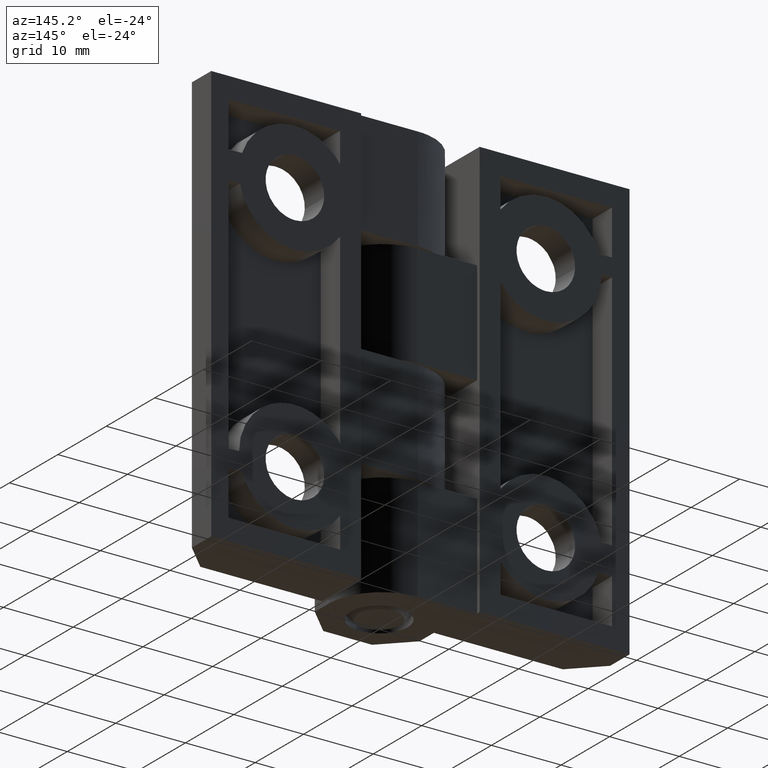
[diagram: clean part render]
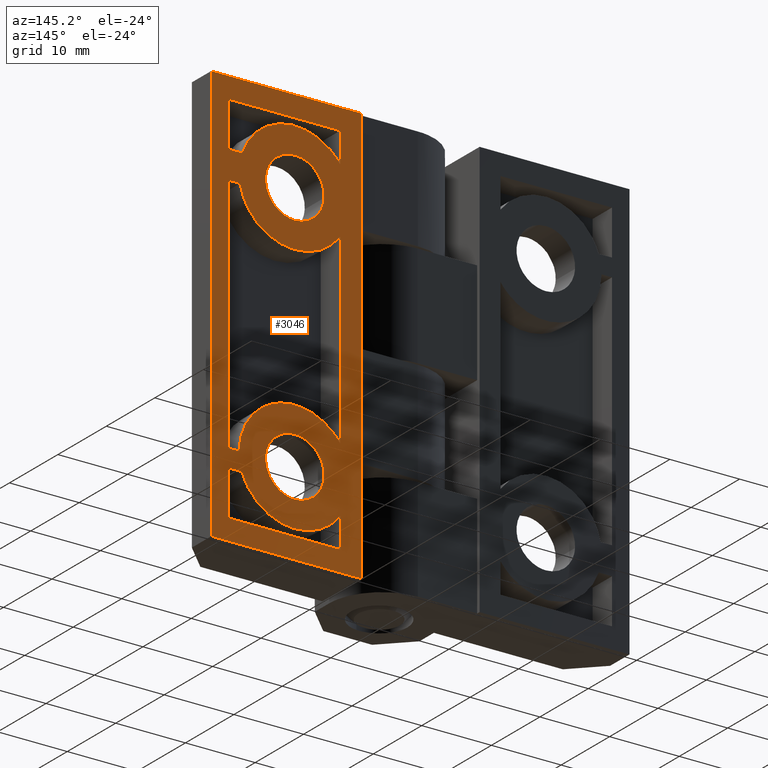
[diagram: same view with one face highlighted and labeled with its STEP entity id]
A machine part, auxiliary view. The second image highlights one B-rep face of the part: STEP entity #3046.
In plain terms, the highlighted face is a freeform B-spline surface patch.
Its self-contained STEP definition (entity closure, byte-faithful):
#636=CARTESIAN_POINT('',(22.170642368832588,8.500000403728343,48.495747181801477));
#637=VERTEX_POINT('',#636);
#643=CARTESIAN_POINT('',(18.000000854954202,8.500000403728341,43.800000655464792));
#644=VERTEX_POINT('',#643);
#645=CARTESIAN_POINT('',(22.170642368832596,8.500000403728343,48.495747181801484));
#646=CARTESIAN_POINT('',(22.200002479367015,8.500000403728341,48.248744613024321));
#647=CARTESIAN_POINT('',(22.200002479367011,8.500000403728341,48.000002279877599));
#648=CARTESIAN_POINT('',(22.200002479367011,8.500000403728341,43.800000655464792));
#649=CARTESIAN_POINT('',(18.000000854954202,8.500000403728341,43.800000655464792));
#657=(BOUNDED_CURVE()B_SPLINE_CURVE(2,(#645,#646,#647,#648,#649),.UNSPECIFIED.,.F.,.U.)B_SPLINE_CURVE_WITH_KNOTS((3,2,3),(0.229562398579775,0.250000000000000,0.500000000000000),.UNSPECIFIED.)CURVE()GEOMETRIC_REPRESENTATION_ITEM()RATIONAL_B_SPLINE_CURVE((0.956026607310568,0.976055860540816,1.0,0.707106781186547,1.0))REPRESENTATION_ITEM(''));
#658=EDGE_CURVE('',#637,#644,#657,.T.);
#660=CARTESIAN_POINT('',(13.807833080212770,8.500000403728341,47.743598314444647));
#661=VERTEX_POINT('',#660);
#662=CARTESIAN_POINT('',(18.000000854954202,8.500000403728341,43.800000655464792));
#663=CARTESIAN_POINT('',(14.049033846267980,8.500000403728341,43.800000655464807));
#664=CARTESIAN_POINT('',(13.807833080212774,8.500000403728341,47.743598314444654));
#672=(BOUNDED_CURVE()B_SPLINE_CURVE(2,(#662,#663,#664),.UNSPECIFIED.,.F.,.U.)B_SPLINE_CURVE_WITH_KNOTS((3,3),(0.500000000000000,0.739332962223979),.UNSPECIFIED.)CURVE()GEOMETRIC_REPRESENTATION_ITEM()RATIONAL_B_SPLINE_CURVE((1.0,0.719603993304241,0.976072041634648))REPRESENTATION_ITEM(''));
#673=EDGE_CURVE('',#644,#661,#672,.T.);
#762=CARTESIAN_POINT('',(18.000000854954202,8.500000403728341,52.200003904290412));
#763=VERTEX_POINT('',#762);
#764=CARTESIAN_POINT('',(13.807833080212776,8.500000403728341,47.743598314444654));
#765=CARTESIAN_POINT('',(13.799999230541388,8.500000403728341,47.871680624174104));
#766=CARTESIAN_POINT('',(13.799999230541390,8.500000403728341,48.000002279877599));
#767=CARTESIAN_POINT('',(13.799999230541388,8.500000403728341,52.200003904290398));
#768=CARTESIAN_POINT('',(18.000000854954202,8.500000403728341,52.200003904290412));
#776=(BOUNDED_CURVE()B_SPLINE_CURVE(2,(#764,#765,#766,#767,#768),.UNSPECIFIED.,.F.,.U.)B_SPLINE_CURVE_WITH_KNOTS((3,2,3),(0.739332962223980,0.750000000000000,1.0),.UNSPECIFIED.)CURVE()GEOMETRIC_REPRESENTATION_ITEM()RATIONAL_B_SPLINE_CURVE((0.976072041634650,0.987502787882308,1.0,0.707106781186547,1.0))REPRESENTATION_ITEM(''));
#777=EDGE_CURVE('',#661,#763,#776,.T.);
#779=CARTESIAN_POINT('',(18.000000854954202,8.500000403728341,52.200003904290412));
#780=CARTESIAN_POINT('',(21.730333641041899,8.500000403728341,52.200003904290391));
#781=CARTESIAN_POINT('',(22.170642368832596,8.500000403728343,48.495747181801484));
#789=(BOUNDED_CURVE()B_SPLINE_CURVE(2,(#779,#780,#781),.UNSPECIFIED.,.F.,.U.)B_SPLINE_CURVE_WITH_KNOTS((3,3),(0.0,0.229562398579775),.UNSPECIFIED.)CURVE()GEOMETRIC_REPRESENTATION_ITEM()RATIONAL_B_SPLINE_CURVE((1.0,0.731050920645732,0.956026607310568))REPRESENTATION_ITEM(''));
#790=EDGE_CURVE('',#763,#637,#789,.T.);
#964=CARTESIAN_POINT('',(22.170642368832588,8.500000403728343,12.495747181801560));
#965=VERTEX_POINT('',#964);
#971=CARTESIAN_POINT('',(18.000000854954202,8.500000403728341,7.800000655464871));
#972=VERTEX_POINT('',#971);
#973=CARTESIAN_POINT('',(22.170642368832596,8.500000403728343,12.495747181801564));
#974=CARTESIAN_POINT('',(22.200002479367011,8.500000403728341,12.248744613024400));
#975=CARTESIAN_POINT('',(22.200002479367011,8.500000403728341,12.000002279877680));
#976=CARTESIAN_POINT('',(22.200002479367011,8.500000403728341,7.800000655464872));
#977=CARTESIAN_POINT('',(18.000000854954202,8.500000403728341,7.800000655464871));
#985=(BOUNDED_CURVE()B_SPLINE_CURVE(2,(#973,#974,#975,#976,#977),.UNSPECIFIED.,.F.,.U.)B_SPLINE_CURVE_WITH_KNOTS((3,2,3),(0.229562398579775,0.250000000000000,0.500000000000000),.UNSPECIFIED.)CURVE()GEOMETRIC_REPRESENTATION_ITEM()RATIONAL_B_SPLINE_CURVE((0.956026607310568,0.976055860540816,1.0,0.707106781186547,1.0))REPRESENTATION_ITEM(''));
#986=EDGE_CURVE('',#965,#972,#985,.T.);
#988=CARTESIAN_POINT('',(13.807833080212770,8.500000403728341,11.743598314444739));
#989=VERTEX_POINT('',#988);
#990=CARTESIAN_POINT('',(18.000000854954202,8.500000403728341,7.800000655464871));
#991=CARTESIAN_POINT('',(14.049033846267934,8.500000403728340,7.800000655464871));
#992=CARTESIAN_POINT('',(13.807833080212768,8.500000403728341,11.743598314444737));
#1000=(BOUNDED_CURVE()B_SPLINE_CURVE(2,(#990,#991,#992),.UNSPECIFIED.,.F.,.U.)B_SPLINE_CURVE_WITH_KNOTS((3,3),(0.500000000000000,0.739332962223981),.UNSPECIFIED.)CURVE()GEOMETRIC_REPRESENTATION_ITEM()RATIONAL_B_SPLINE_CURVE((1.0,0.719603993304239,0.976072041634653))REPRESENTATION_ITEM(''));
#1001=EDGE_CURVE('',#972,#989,#1000,.T.);
#1090=CARTESIAN_POINT('',(18.000000854954202,8.500000403728341,16.200003904290490));
#1091=VERTEX_POINT('',#1090);
#1092=CARTESIAN_POINT('',(13.807833080212770,8.500000403728341,11.743598314444736));
#1093=CARTESIAN_POINT('',(13.799999230541387,8.500000403728341,11.871680624174182));
#1094=CARTESIAN_POINT('',(13.799999230541390,8.500000403728341,12.000002279877680));
#1095=CARTESIAN_POINT('',(13.799999230541388,8.500000403728341,16.200003904290490));
#1096=CARTESIAN_POINT('',(18.000000854954202,8.500000403728341,16.200003904290490));
#1104=(BOUNDED_CURVE()B_SPLINE_CURVE(2,(#1092,#1093,#1094,#1095,#1096),.UNSPECIFIED.,.F.,.U.)B_SPLINE_CURVE_WITH_KNOTS((3,2,3),(0.739332962223980,0.750000000000000,1.0),.UNSPECIFIED.)CURVE()GEOMETRIC_REPRESENTATION_ITEM()RATIONAL_B_SPLINE_CURVE((0.976072041634650,0.987502787882308,1.0,0.707106781186547,1.0))REPRESENTATION_ITEM(''));
#1105=EDGE_CURVE('',#989,#1091,#1104,.T.);
#1107=CARTESIAN_POINT('',(18.000000854954202,8.500000403728341,16.200003904290490));
#1108=CARTESIAN_POINT('',(21.730333641041902,8.500000403728341,16.200003904290487));
#1109=CARTESIAN_POINT('',(22.170642368832592,8.500000403728343,12.495747181801562));
#1117=(BOUNDED_CURVE()B_SPLINE_CURVE(2,(#1107,#1108,#1109),.UNSPECIFIED.,.F.,.U.)B_SPLINE_CURVE_WITH_KNOTS((3,3),(0.0,0.229562398579775),.UNSPECIFIED.)CURVE()GEOMETRIC_REPRESENTATION_ITEM()RATIONAL_B_SPLINE_CURVE((1.0,0.731050920645732,0.956026607310568))REPRESENTATION_ITEM(''));
#1118=EDGE_CURVE('',#1091,#965,#1117,.T.);
#1719=CARTESIAN_POINT('',(11.500001971143099,8.500000403728341,43.336312531821306));
#1720=VERTEX_POINT('',#1719);
#1721=CARTESIAN_POINT('',(25.867130210666300,8.500000403728341,46.548002210911299));
#1722=VERTEX_POINT('',#1721);
#1723=CARTESIAN_POINT('',(11.500001971143121,8.500000403728341,43.336312531821321));
#1724=CARTESIAN_POINT('',(14.583430648978611,8.500000403728341,39.038795235297876));
#1725=CARTESIAN_POINT('',(19.745280805626191,8.500000403728341,40.192697434591118));
#1726=CARTESIAN_POINT('',(24.907130962273779,8.500000403728341,41.346599633884374));
#1727=CARTESIAN_POINT('',(25.867130210666328,8.500000403728341,46.548002210911292));
#1735=(BOUNDED_CURVE()B_SPLINE_CURVE(2,(#1723,#1724,#1725,#1726,#1727),.UNSPECIFIED.,.F.,.U.)B_SPLINE_CURVE_WITH_KNOTS((3,2,3),(0.0,0.500000000000000,1.0),.UNSPECIFIED.)CURVE()GEOMETRIC_REPRESENTATION_ITEM()RATIONAL_B_SPLINE_CURVE((1.0,0.834165630236694,1.0,0.834165630236694,1.0))REPRESENTATION_ITEM(''));
#1736=EDGE_CURVE('',#1720,#1722,#1735,.T.);
#1757=CARTESIAN_POINT('',(11.500001971143140,8.500000403728341,16.663690318025850));
#1758=VERTEX_POINT('',#1757);
#1759=CARTESIAN_POINT('',(11.500001971143140,8.500000403728341,16.663690318025850));
#1760=CARTESIAN_POINT('',(11.500001971143099,8.500000403728341,43.336312531821306));
#1761=QUASI_UNIFORM_CURVE('',1,(#1759,#1760),.UNSPECIFIED.,.F.,.U.);
#1762=EDGE_CURVE('',#1758,#1720,#1761,.T.);
#1792=CARTESIAN_POINT('',(26.000002659857198,8.500000403728341,12.000000569969419));
#1793=VERTEX_POINT('',#1792);
#1794=CARTESIAN_POINT('',(26.000002659857220,8.500000403728341,12.000000569969460));
#1795=CARTESIAN_POINT('',(26.000002659857223,8.500000403728341,17.830542466317507));
#1796=CARTESIAN_POINT('',(20.449492139004501,8.500000403728341,19.615774037563440));
#1797=CARTESIAN_POINT('',(14.898981618151753,8.500000403728341,21.401005608809385));
#1798=CARTESIAN_POINT('',(11.500001971143149,8.500000403728341,16.663690318025839));
#1806=(BOUNDED_CURVE()B_SPLINE_CURVE(2,(#1794,#1795,#1796,#1797,#1798),.UNSPECIFIED.,.F.,.U.)B_SPLINE_CURVE_WITH_KNOTS((3,2,3),(0.0,0.500000000000000,1.0),.UNSPECIFIED.)CURVE()GEOMETRIC_REPRESENTATION_ITEM()RATIONAL_B_SPLINE_CURVE((1.0,0.808141762888108,1.0,0.808141762888108,1.0))REPRESENTATION_ITEM(''));
#1807=EDGE_CURVE('',#1793,#1758,#1806,.T.);
#1824=CARTESIAN_POINT('',(27.500002731103400,8.500000403728341,12.000000569969460));
#1825=VERTEX_POINT('',#1824);
#1826=CARTESIAN_POINT('',(27.500002731103400,8.500000403728341,12.000000569969460));
#1827=CARTESIAN_POINT('',(26.000002659857198,8.500000403728341,12.000000569969419));
#1828=QUASI_UNIFORM_CURVE('',1,(#1826,#1827),.UNSPECIFIED.,.F.,.U.);
#1829=EDGE_CURVE('',#1825,#1793,#1828,.T.);
#1846=CARTESIAN_POINT('',(27.500002731103400,8.500000403728341,46.548002210911399));
#1847=VERTEX_POINT('',#1846);
#1848=CARTESIAN_POINT('',(27.500002731103400,8.500000403728341,46.548002210911399));
#1849=CARTESIAN_POINT('',(27.500002731103400,8.500000403728341,12.000000569969460));
#1850=QUASI_UNIFORM_CURVE('',1,(#1848,#1849),.UNSPECIFIED.,.F.,.U.);
#1851=EDGE_CURVE('',#1847,#1825,#1850,.T.);
#1868=CARTESIAN_POINT('',(25.867130210666300,8.500000403728341,46.548002210911299));
#1869=CARTESIAN_POINT('',(27.500002731103400,8.500000403728341,46.548002210911399));
#1870=QUASI_UNIFORM_CURVE('',1,(#1868,#1869),.UNSPECIFIED.,.F.,.U.);
#1871=EDGE_CURVE('',#1722,#1847,#1870,.T.);
#1937=CARTESIAN_POINT('',(25.583385526354050,8.500000403728341,50.548002400901197));
#1938=VERTEX_POINT('',#1937);
#1939=CARTESIAN_POINT('',(27.500002731103400,8.500000403728341,50.548002400901197));
#1940=VERTEX_POINT('',#1939);
#1941=CARTESIAN_POINT('',(25.583385526354050,8.500000403728341,50.548002400901197));
#1942=CARTESIAN_POINT('',(27.500002731103400,8.500000403728341,50.548002400901197));
#1943=QUASI_UNIFORM_CURVE('',1,(#1941,#1942),.UNSPECIFIED.,.F.,.U.);
#1944=EDGE_CURVE('',#1938,#1940,#1943,.T.);
#1974=CARTESIAN_POINT('',(11.500001971144000,8.500000403728341,52.663692027935298));
#1975=VERTEX_POINT('',#1974);
#1976=CARTESIAN_POINT('',(25.583385526354039,8.500000403728341,50.548002400901197));
#1977=CARTESIAN_POINT('',(24.025504423142028,8.500000403728341,55.184583600651884));
#1978=CARTESIAN_POINT('',(19.188474112498429,8.500000403728341,55.911231058186473));
#1979=CARTESIAN_POINT('',(14.351443801854819,8.500000403728341,56.637878515721070));
#1980=CARTESIAN_POINT('',(11.500001971144000,8.500000403728341,52.663692027935298));
#1988=(BOUNDED_CURVE()B_SPLINE_CURVE(2,(#1976,#1977,#1978,#1979,#1980),.UNSPECIFIED.,.F.,.U.)B_SPLINE_CURVE_WITH_KNOTS((3,2,3),(0.0,0.500000000000000,1.0),.UNSPECIFIED.)CURVE()GEOMETRIC_REPRESENTATION_ITEM()RATIONAL_B_SPLINE_CURVE((1.0,0.853167107467892,1.0,0.853167107467892,1.0))REPRESENTATION_ITEM(''));
#1989=EDGE_CURVE('',#1938,#1975,#1988,.T.);
#2006=CARTESIAN_POINT('',(11.500001971144160,8.500000403728341,57.000002707354703));
#2007=VERTEX_POINT('',#2006);
#2008=CARTESIAN_POINT('',(11.500001971144160,8.500000403728341,57.000002707354703));
#2009=CARTESIAN_POINT('',(11.500001971144000,8.500000403728341,52.663692027935298));
#2010=QUASI_UNIFORM_CURVE('',1,(#2008,#2009),.UNSPECIFIED.,.F.,.U.);
#2011=EDGE_CURVE('',#2007,#1975,#2010,.T.);
#2028=CARTESIAN_POINT('',(27.500002731103400,8.500000403728341,57.000002707354703));
#2029=VERTEX_POINT('',#2028);
#2030=CARTESIAN_POINT('',(27.500002731103400,8.500000403728341,57.000002707354703));
#2031=CARTESIAN_POINT('',(11.500001971144160,8.500000403728341,57.000002707354703));
#2032=QUASI_UNIFORM_CURVE('',1,(#2030,#2031),.UNSPECIFIED.,.F.,.U.);
#2033=EDGE_CURVE('',#2029,#2007,#2032,.T.);
#2050=CARTESIAN_POINT('',(27.500002731103400,8.500000403728341,50.548002400901197));
#2051=CARTESIAN_POINT('',(27.500002731103400,8.500000403728341,57.000002707354703));
#2052=QUASI_UNIFORM_CURVE('',1,(#2050,#2051),.UNSPECIFIED.,.F.,.U.);
#2053=EDGE_CURVE('',#1940,#2029,#2052,.T.);
#2128=CARTESIAN_POINT('',(11.500001971143099,8.500000403728341,7.336310821913150));
#2129=VERTEX_POINT('',#2128);
#2130=CARTESIAN_POINT('',(25.583385526353950,8.500000403728341,9.452000448946000));
#2131=VERTEX_POINT('',#2130);
#2132=CARTESIAN_POINT('',(11.500001971143121,8.500000403728341,7.336310821913161));
#2133=CARTESIAN_POINT('',(14.351443801853403,8.500000403728341,3.362124334126348));
#2134=CARTESIAN_POINT('',(19.188474112497602,8.500000403728341,4.088771791660580));
#2135=CARTESIAN_POINT('',(24.025504423141793,8.500000403728341,4.815419249194814));
#2136=CARTESIAN_POINT('',(25.583385526353950,8.500000403728341,9.452000448946000));
#2144=(BOUNDED_CURVE()B_SPLINE_CURVE(2,(#2132,#2133,#2134,#2135,#2136),.UNSPECIFIED.,.F.,.U.)B_SPLINE_CURVE_WITH_KNOTS((3,2,3),(0.0,0.500000000000000,1.0),.UNSPECIFIED.)CURVE()GEOMETRIC_REPRESENTATION_ITEM()RATIONAL_B_SPLINE_CURVE((1.0,0.853167107467867,1.0,0.853167107467867,1.0))REPRESENTATION_ITEM(''));
#2145=EDGE_CURVE('',#2129,#2131,#2144,.T.);
#2166=CARTESIAN_POINT('',(11.500001971144160,8.500000403728341,3.000000142492410));
#2167=VERTEX_POINT('',#2166);
#2168=CARTESIAN_POINT('',(11.500001971144160,8.500000403728341,3.000000142492410));
#2169=CARTESIAN_POINT('',(11.500001971143099,8.500000403728341,7.336310821913150));
#2170=QUASI_UNIFORM_CURVE('',1,(#2168,#2169),.UNSPECIFIED.,.F.,.U.);
#2171=EDGE_CURVE('',#2167,#2129,#2170,.T.);
#2188=CARTESIAN_POINT('',(27.500002731103400,8.500000403728341,3.000000142492410));
#2189=VERTEX_POINT('',#2188);
#2190=CARTESIAN_POINT('',(27.500002731103400,8.500000403728341,3.000000142492410));
#2191=CARTESIAN_POINT('',(11.500001971144160,8.500000403728341,3.000000142492410));
#2192=QUASI_UNIFORM_CURVE('',1,(#2190,#2191),.UNSPECIFIED.,.F.,.U.);
#2193=EDGE_CURVE('',#2189,#2167,#2192,.T.);
#2210=CARTESIAN_POINT('',(27.500002731103400,8.500000403728341,9.452000448945910));
#2211=VERTEX_POINT('',#2210);
#2212=CARTESIAN_POINT('',(27.500002731103400,8.500000403728341,9.452000448945910));
#2213=CARTESIAN_POINT('',(27.500002731103400,8.500000403728341,3.000000142492410));
#2214=QUASI_UNIFORM_CURVE('',1,(#2212,#2213),.UNSPECIFIED.,.F.,.U.);
#2215=EDGE_CURVE('',#2211,#2189,#2214,.T.);
#2232=CARTESIAN_POINT('',(25.583385526353950,8.500000403728341,9.452000448946000));
#2233=CARTESIAN_POINT('',(27.500002731103400,8.500000403728341,9.452000448945910));
#2234=QUASI_UNIFORM_CURVE('',1,(#2232,#2233),.UNSPECIFIED.,.F.,.U.);
#2235=EDGE_CURVE('',#2131,#2211,#2234,.T.);
#2512=CARTESIAN_POINT('',(30.000002849847100,8.500000403728341,60.000002849847100));
#2513=VERTEX_POINT('',#2512);
#2519=CARTESIAN_POINT('',(8.500001828651890,8.500000403728341,60.000002849847100));
#2520=VERTEX_POINT('',#2519);
#2521=CARTESIAN_POINT('',(30.000002849847100,8.500000403728341,60.000002849847100));
#2522=CARTESIAN_POINT('',(8.500001828651890,8.500000403728341,60.000002849847100));
#2523=QUASI_UNIFORM_CURVE('',1,(#2521,#2522),.UNSPECIFIED.,.F.,.U.);
#2524=EDGE_CURVE('',#2513,#2520,#2523,.T.);
#2609=CARTESIAN_POINT('',(8.500001828651890,8.500000403728341,0.0));
#2610=VERTEX_POINT('',#2609);
#2611=CARTESIAN_POINT('',(8.500001828651890,8.500000403728341,60.000002849847100));
#2612=CARTESIAN_POINT('',(8.500001828651890,8.500000403728341,0.0));
#2613=QUASI_UNIFORM_CURVE('',1,(#2611,#2612),.UNSPECIFIED.,.F.,.U.);
#2614=EDGE_CURVE('',#2520,#2610,#2613,.T.);
#2657=CARTESIAN_POINT('',(30.000002849847100,8.500000403728341,0.0));
#2658=VERTEX_POINT('',#2657);
#2664=CARTESIAN_POINT('',(30.000002849847100,8.500000403728341,60.000002849847100));
#2665=CARTESIAN_POINT('',(30.000002849847100,8.500000403728341,0.0));
#2666=QUASI_UNIFORM_CURVE('',1,(#2664,#2665),.UNSPECIFIED.,.F.,.U.);
#2667=EDGE_CURVE('',#2513,#2658,#2666,.T.);
#2844=CARTESIAN_POINT('',(30.000002849847100,8.500000403728341,0.0));
#2845=CARTESIAN_POINT('',(8.500001828651890,8.500000403728341,0.0));
#2846=QUASI_UNIFORM_CURVE('',1,(#2844,#2845),.UNSPECIFIED.,.F.,.U.);
#2847=EDGE_CURVE('',#2658,#2610,#2846,.T.);
#3001=CARTESIAN_POINT('',(7.426076896127468,8.500000403728341,62.997004002379512));
#3002=CARTESIAN_POINT('',(7.426076896127468,8.500000403728341,-2.997001688974236));
#3003=CARTESIAN_POINT('',(31.073926821246591,8.500000403728341,62.997004002379512));
#3004=CARTESIAN_POINT('',(31.073926821246591,8.500000403728341,-2.997001688974236));
#3005=B_SPLINE_SURFACE_WITH_KNOTS('',1,1,((#3001,#3003),(#3002,#3004)),.UNSPECIFIED.,.F.,.F.,.U.,(2,2),(2,2),(0.0,65.994005691353749),(0.0,23.647849925119122),.UNSPECIFIED.);
#3006=ORIENTED_EDGE('',*,*,#2847,.T.);
#3007=ORIENTED_EDGE('',*,*,#2614,.F.);
#3008=ORIENTED_EDGE('',*,*,#2524,.F.);
#3009=ORIENTED_EDGE('',*,*,#2667,.T.);
#3010=EDGE_LOOP('',(#3006,#3007,#3008,#3009));
#3011=FACE_OUTER_BOUND('',#3010,.T.);
#3012=ORIENTED_EDGE('',*,*,#1851,.F.);
#3013=ORIENTED_EDGE('',*,*,#1871,.F.);
#3014=ORIENTED_EDGE('',*,*,#1736,.F.);
#3015=ORIENTED_EDGE('',*,*,#1762,.F.);
#3016=ORIENTED_EDGE('',*,*,#1807,.F.);
#3017=ORIENTED_EDGE('',*,*,#1829,.F.);
#3018=EDGE_LOOP('',(#3012,#3013,#3014,#3015,#3016,#3017));
#3019=FACE_BOUND('',#3018,.T.);
#3020=ORIENTED_EDGE('',*,*,#2215,.F.);
#3021=ORIENTED_EDGE('',*,*,#2235,.F.);
#3022=ORIENTED_EDGE('',*,*,#2145,.F.);
#3023=ORIENTED_EDGE('',*,*,#2171,.F.);
#3024=ORIENTED_EDGE('',*,*,#2193,.F.);
#3025=EDGE_LOOP('',(#3020,#3021,#3022,#3023,#3024));
#3026=FACE_BOUND('',#3025,.T.);
#3027=ORIENTED_EDGE('',*,*,#2053,.T.);
#3028=ORIENTED_EDGE('',*,*,#2033,.T.);
#3029=ORIENTED_EDGE('',*,*,#2011,.T.);
#3030=ORIENTED_EDGE('',*,*,#1989,.F.);
#3031=ORIENTED_EDGE('',*,*,#1944,.T.);
#3032=EDGE_LOOP('',(#3027,#3028,#3029,#3030,#3031));
#3033=FACE_BOUND('',#3032,.T.);
#3034=ORIENTED_EDGE('',*,*,#1001,.F.);
#3035=ORIENTED_EDGE('',*,*,#986,.F.);
#3036=ORIENTED_EDGE('',*,*,#1118,.F.);
#3037=ORIENTED_EDGE('',*,*,#1105,.F.);
#3038=EDGE_LOOP('',(#3034,#3035,#3036,#3037));
#3039=FACE_BOUND('',#3038,.T.);
#3040=ORIENTED_EDGE('',*,*,#673,.F.);
#3041=ORIENTED_EDGE('',*,*,#658,.F.);
#3042=ORIENTED_EDGE('',*,*,#790,.F.);
#3043=ORIENTED_EDGE('',*,*,#777,.F.);
#3044=EDGE_LOOP('',(#3040,#3041,#3042,#3043));
#3045=FACE_BOUND('',#3044,.T.);
#3046=ADVANCED_FACE('',(#3011,#3019,#3026,#3033,#3039,#3045),#3005,.F.);